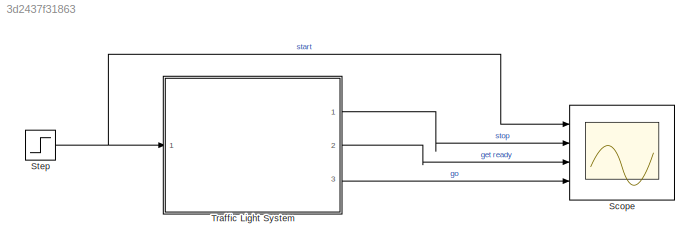
MODEL slx_3d2437f31863
KIND model
CONFIG AbsTol = auto
CONFIG EnableMultiTasking = off
CONFIG FixedStep = 1
CONFIG MaxStep = auto
CONFIG MinStep = auto
CONFIG RelTol = 1e-3
CONFIG SampleTimeConstraint = Unconstrained
CONFIG Solver = FixedStepAuto
CONFIG SolverName = FixedStepAuto
CONFIG StartTime = 0.0
CONFIG StopTime = 30
BLOCK [Scope] Scope
  Floating = off
  NumInputPorts = 4
  Ports = [4]
  ScopeSpecificationString = Simulink.scopes.TimeScopeBlockCfg('CurrentConfiguration', extmgr.ConfigurationSet(extmgr.Configuration('Core','General UI',true),extmgr.Configuration('Core','Source UI',true),extmgr.Configuration('Sources','WiredSimulink',true),extmgr.Configuration('Visuals','Time Domain',true,'SerializedDisplays',{struct('MinYLimReal','-0.125','MaxYLimReal','1.125','YLabelReal','','MinYLimMag','0.00000','MaxYLimM...<+3378ch>
BLOCK [Step] Step
  SampleTime = 0
  Time = 4
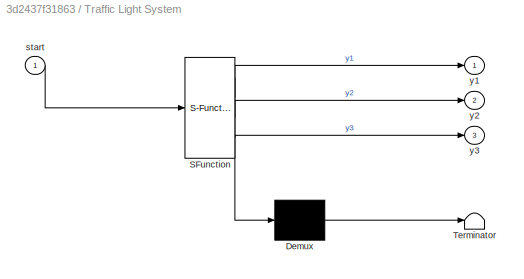
BLOCK [SubSystem] Traffic Light System
  ErrorFcn = Stateflow.Translate.translate
  PermitHierarchicalResolution = ExplicitOnly
  Ports = [1, 3]
  RequestExecContextInheritance = off
  SFBlockType = Chart
  TreatAsAtomicUnit = on
BLOCK [Demux] Traffic Light System/ Demux 
  Outputs = 1
  Ports = [1, 1]
BLOCK [S-Function] Traffic Light System/ SFunction 
  EnableBusSupport = on
  FunctionName = sf_sfun
  PortCounts = [1 4]
  Ports = [1, 4]
  SFcnIsStateOwnerBlock = off
  SFunctionDeploymentMode = off
  Tag = Stateflow S-Function 3
BLOCK [Terminator] Traffic Light System/ Terminator 
BLOCK [Inport] Traffic Light System/start
BLOCK [Outport] Traffic Light System/y1
BLOCK [Outport] Traffic Light System/y2
  Port = 2
BLOCK [Outport] Traffic Light System/y3
  Port = 3
NET Step:1 -> Scope:1, Traffic Light System:1
LINE Traffic Light System:1 -> Scope:2
LINE Traffic Light System:2 -> Scope:3
LINE Traffic Light System:3 -> Scope:4
note: NET lines group one-source signal fan-out (src -> all destinations, sorted); 1:1 wires keep LINE
CHART Traffic Light System states=4 transitions=6
  STATE_LABEL 'Red\nduring:\ny1 = 1;\ny2 = 0;\ny3 = 0;\nforward = 1;'
  STATE_LABEL 'Yellow\nduring:\ny1 = 0;\ny2 = 1;\ny3 = 0;'
  STATE_LABEL 'Stand_By_\nduring:\ny1 = 1;\ny2 = 1;\ny3 = 1;\nforward = 0;'
  STATE_LABEL 'Green\nduring:\ny1 = 0;\ny2 = 0;\ny3 = 1;\nforward = 0;'
CHART  states=0 transitions=0
